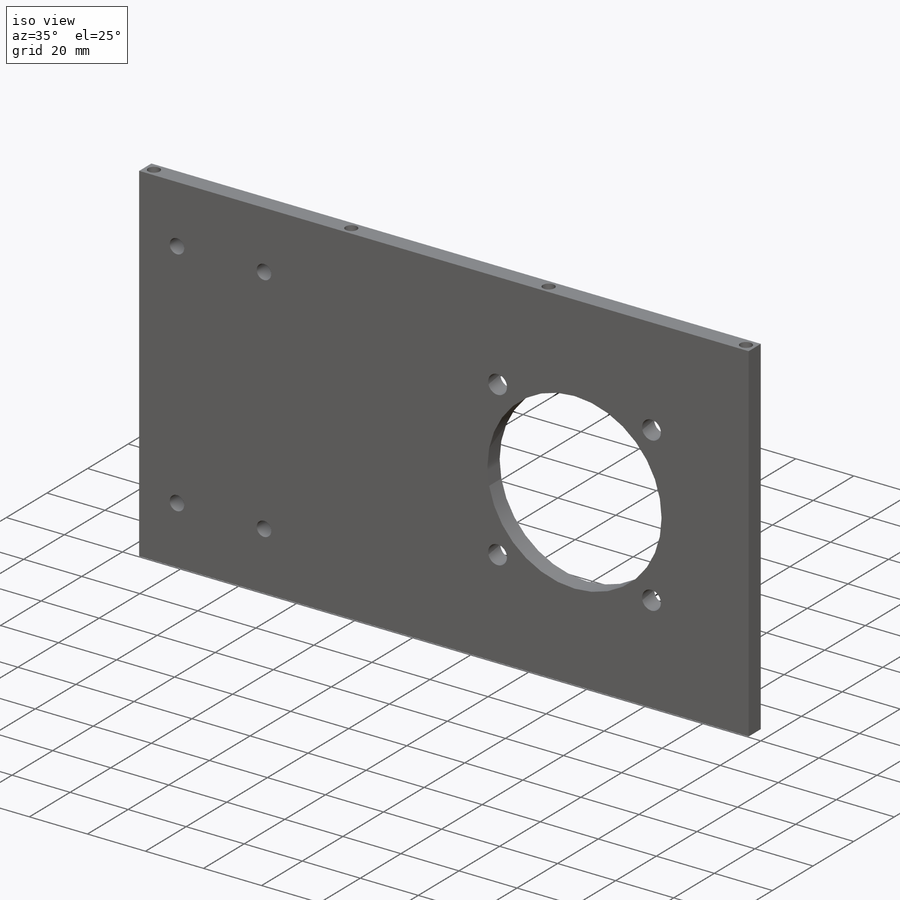
[diagram: iso view]
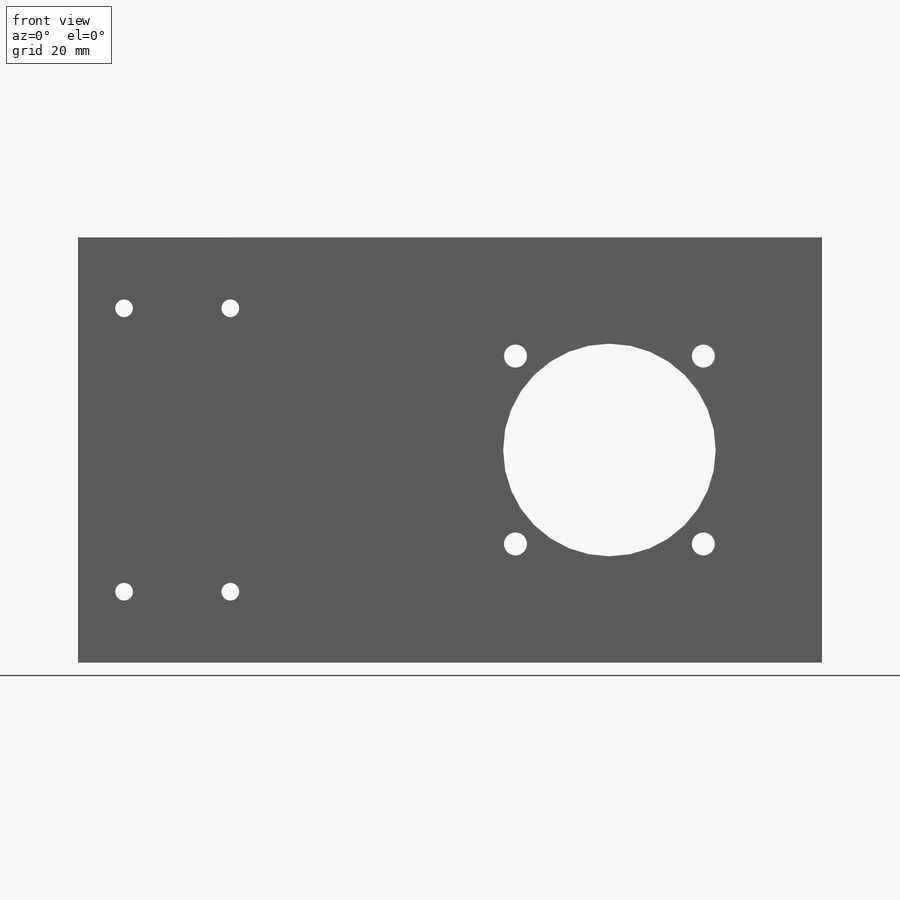
[diagram: front view]
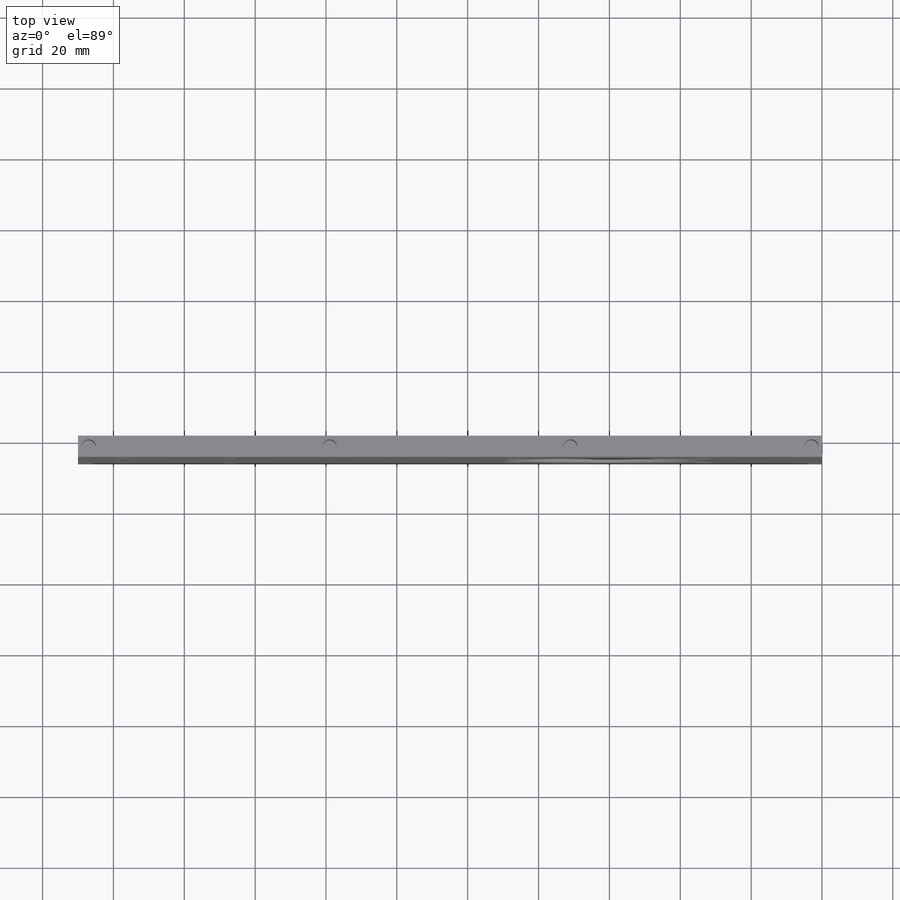
[diagram: top view]
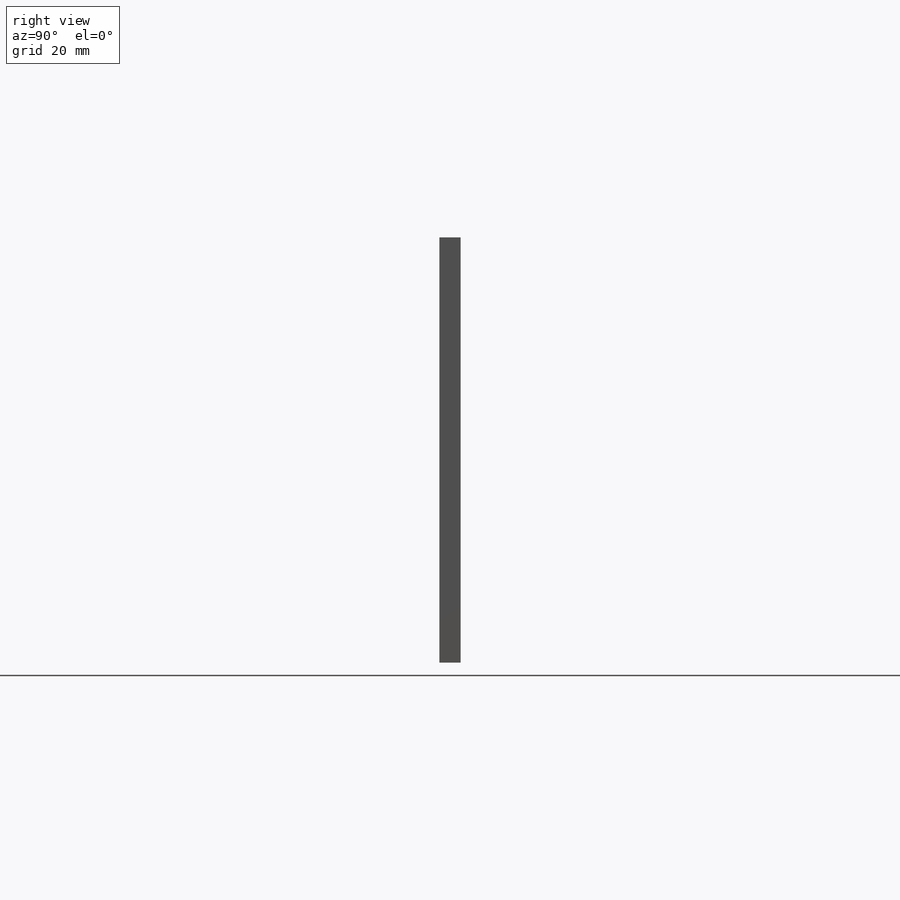
[diagram: right view]
SOLIDWORKS PART (.sldprt)
format: sldprt  version: not decoded by parser v0  size: 245,760 bytes
history: native  units: mm
features: plane x4, sketch x3, cut_extrude x2, material x1, extrude x1, mirror x1 (+10 scaffold rows collapsed)
feature tree (22):
  scaffold x10  (default folders/planes/origin — collapsed)
  material  "6061 合金"
  plane  "前视基准面"
  plane  "上视基准面"
  plane  "右视基准面"
  sketch  "草图1"  dims[c1.D1=~10.572591mm c1.D3=6.5mm c1.D5=70.0mm c1.D8=60.0mm c2.D1=~44.990169mm c3.D1=45.0deg c3.D2=~46.689984mm c3.D3=~66.029608mm c4.D2=37.5mm c4.D5=60.0mm c4.D6=120.0mm c4.D7=150.0mm c4.D4=4.0]
  extrude  "凸台-拉伸1"  Depth=6mm
  sketch  "草图2"  dims[D1=5.0mm D2=20.0mm D3=13.0mm D6=80.0mm D4=2.0 D5=2.0]
  cut_extrude  "切除-拉伸1"  Depth=10mm
  sketch  "草图3"  dims[D1=3.0mm D2=3.0mm D3=4.0]
  cut_extrude  "切除-拉伸2"  Depth=20mm
  plane  "基准面1"
  mirror  "镜向3"
decode coverage: 6 of 7 modeling features carry decoded parameters
note: ~ marks probable driven/reference dimensions
note: suppression state not decoded; provenance and decode notes live in map.json
